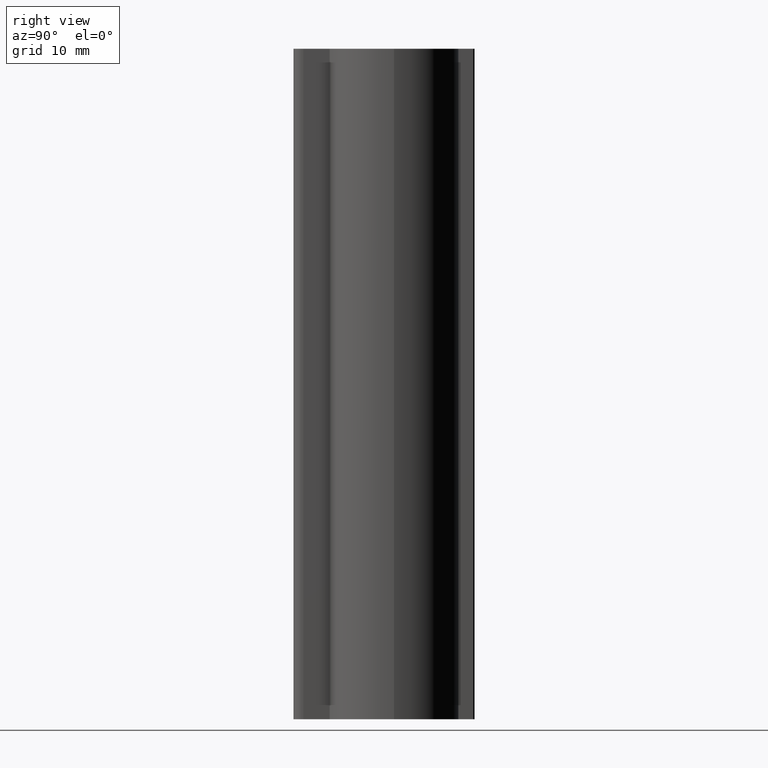
[diagram: clean part render]
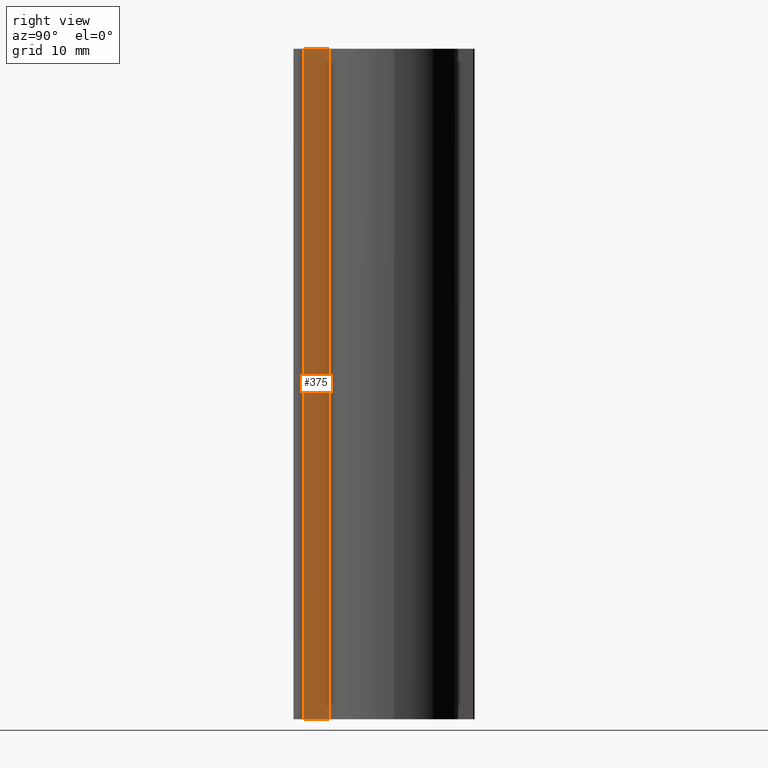
[diagram: same view with one face highlighted and labeled with its STEP entity id]
A machine part, right view. The second image highlights one B-rep face of the part: STEP entity #375.
In plain terms, the highlighted planar face has unit normal (1, 0, 0).
Its self-contained STEP definition (entity closure, byte-faithful):
#58=FACE_OUTER_BOUND('',#79,.T.);
#79=EDGE_LOOP('',(#289,#290,#291,#292));
#112=LINE('',#671,#149);
#113=LINE('',#674,#150);
#114=LINE('',#676,#151);
#115=LINE('',#677,#152);
#149=VECTOR('',#552,10.);
#150=VECTOR('',#555,10.);
#151=VECTOR('',#556,10.);
#152=VECTOR('',#557,10.);
#184=VERTEX_POINT('',#667);
#185=VERTEX_POINT('',#669);
#186=VERTEX_POINT('',#673);
#187=VERTEX_POINT('',#675);
#228=EDGE_CURVE('',#184,#185,#112,.T.);
#229=EDGE_CURVE('',#186,#184,#113,.T.);
#230=EDGE_CURVE('',#187,#185,#114,.T.);
#231=EDGE_CURVE('',#186,#187,#115,.T.);
#289=ORIENTED_EDGE('',*,*,#229,.T.);
#290=ORIENTED_EDGE('',*,*,#228,.T.);
#291=ORIENTED_EDGE('',*,*,#230,.F.);
#292=ORIENTED_EDGE('',*,*,#231,.F.);
#357=PLANE('',#470);
#375=ADVANCED_FACE('',(#58),#357,.T.);
#470=AXIS2_PLACEMENT_3D('',#672,#553,#554);
#552=DIRECTION('',(0.,0.,1.));
#553=DIRECTION('center_axis',(1.,0.,0.));
#554=DIRECTION('ref_axis',(0.,1.,0.));
#555=DIRECTION('',(0.,1.,0.));
#556=DIRECTION('',(0.,1.,0.));
#557=DIRECTION('',(0.,0.,1.));
#667=CARTESIAN_POINT('',(2.80000000009254,-9.59999999997294,0.));
#669=CARTESIAN_POINT('',(2.80000000009254,-9.59999999997294,100.));
#671=CARTESIAN_POINT('',(2.80000000009254,-9.59999999997294,0.));
#672=CARTESIAN_POINT('Origin',(2.80000000009254,-13.4999999999731,0.));
#673=CARTESIAN_POINT('',(2.80000000009254,-13.4999999999731,0.));
#674=CARTESIAN_POINT('',(2.80000000009254,-13.4999999999731,0.));
#675=CARTESIAN_POINT('',(2.80000000009254,-13.4999999999731,100.));
#676=CARTESIAN_POINT('',(2.80000000009254,-13.4999999999731,100.));
#677=CARTESIAN_POINT('',(2.80000000009254,-13.4999999999731,0.));